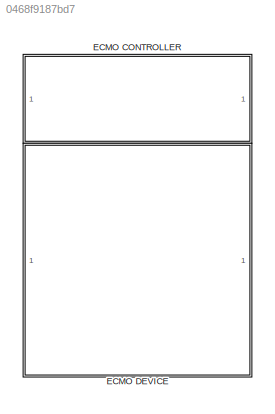
MODEL slx_0468f9187bd7
KIND model
CONFIG AbsTol = auto
CONFIG EnableMultiTasking = off
CONFIG FixedStep = auto
CONFIG MaxStep = auto
CONFIG MinStep = auto
CONFIG RelTol = 1e-3
CONFIG SampleTimeConstraint = Unconstrained
CONFIG Solver = VariableStepAuto
CONFIG SolverName = VariableStepAuto
CONFIG StartTime = 0.0
CONFIG StopTime = 10.0
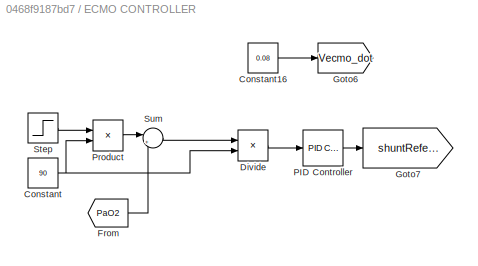
BLOCK [SubSystem] ECMO CONTROLLER
  Ports = []
  RequestExecContextInheritance = off
BLOCK [Constant] ECMO CONTROLLER/Constant
  Value = 90
BLOCK [Constant] ECMO CONTROLLER/Constant16
  Value = 0.08
BLOCK [Product] ECMO CONTROLLER/Divide
  InputSameDT = off
  Inputs = */
  OutDataTypeStr = Inherit: Inherit via internal rule
  Ports = [2, 1]
  RndMeth = Floor
  SaturateOnIntegerOverflow = off
BLOCK [From] ECMO CONTROLLER/From
  GotoTag = PaO2
  TagVisibility = global
BLOCK [Goto] ECMO CONTROLLER/Goto6
  GotoTag = Vecmo_dot
  TagVisibility = global
BLOCK [Goto] ECMO CONTROLLER/Goto7
  GotoTag = shuntReference
  TagVisibility = global
BLOCK [Reference] ECMO CONTROLLER/PID Controller  REF=simulink/Continuous/PID Controller
  Ports = [1, 1]
  SourceBlock = simulink/Continuous/PID Controller
  SourceProductBaseCode = SL
  SourceProductName = Simulink
  SourceType = PID 1dof
BLOCK [Product] ECMO CONTROLLER/Product
  InputSameDT = off
  OutDataTypeStr = Inherit: Inherit via internal rule
  Ports = [2, 1]
  RndMeth = Floor
  SaturateOnIntegerOverflow = off
BLOCK [Step] ECMO CONTROLLER/Step
  SampleTime = 0
  Time = 0
BLOCK [Sum] ECMO CONTROLLER/Sum
  IconShape = round
  InputSameDT = off
  Inputs = |+-
  OutDataTypeStr = Inherit: Inherit via internal rule
  Ports = [2, 1]
  SaturateOnIntegerOverflow = off
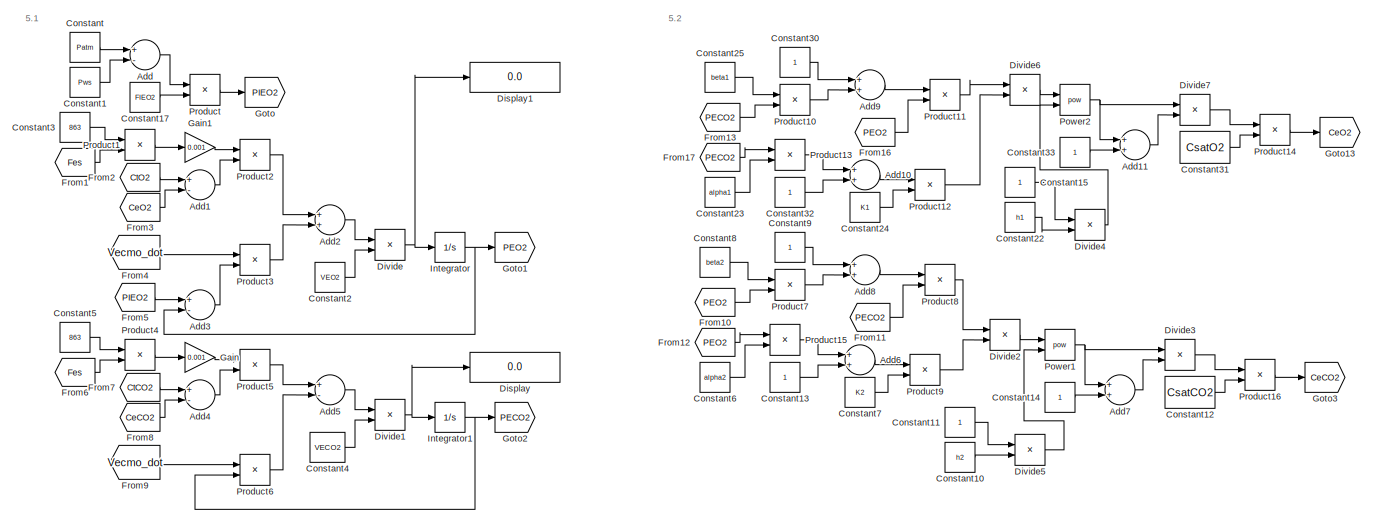
[diagram: ECMO DEVICE - part 1/2, full width, top band]
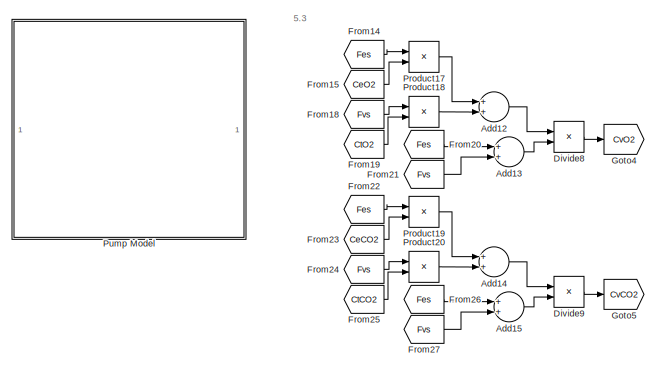
[diagram: ECMO DEVICE - part 2/2, bottom left region]
BLOCK [SubSystem] ECMO DEVICE
  Ports = []
  RequestExecContextInheritance = off
BLOCK [Sum] ECMO DEVICE/Add
  InputSameDT = off
  Inputs = +-
  OutDataTypeStr = Inherit: Inherit via internal rule
  Ports = [2, 1]
  SaturateOnIntegerOverflow = off
BLOCK [Sum] ECMO DEVICE/Add1
  InputSameDT = off
  Inputs = +-
  OutDataTypeStr = Inherit: Inherit via internal rule
  Ports = [2, 1]
  SaturateOnIntegerOverflow = off
BLOCK [Sum] ECMO DEVICE/Add10
  InputSameDT = off
  OutDataTypeStr = Inherit: Inherit via internal rule
  Ports = [2, 1]
  SaturateOnIntegerOverflow = off
BLOCK [Sum] ECMO DEVICE/Add11
  InputSameDT = off
  OutDataTypeStr = Inherit: Inherit via internal rule
  Ports = [2, 1]
  SaturateOnIntegerOverflow = off
BLOCK [Sum] ECMO DEVICE/Add12
  InputSameDT = off
  OutDataTypeStr = Inherit: Inherit via internal rule
  Ports = [2, 1]
  SaturateOnIntegerOverflow = off
BLOCK [Sum] ECMO DEVICE/Add13
  InputSameDT = off
  OutDataTypeStr = Inherit: Inherit via internal rule
  Ports = [2, 1]
  SaturateOnIntegerOverflow = off
BLOCK [Sum] ECMO DEVICE/Add14
  InputSameDT = off
  OutDataTypeStr = Inherit: Inherit via internal rule
  Ports = [2, 1]
  SaturateOnIntegerOverflow = off
BLOCK [Sum] ECMO DEVICE/Add15
  InputSameDT = off
  OutDataTypeStr = Inherit: Inherit via internal rule
  Ports = [2, 1]
  SaturateOnIntegerOverflow = off
BLOCK [Sum] ECMO DEVICE/Add2
  InputSameDT = off
  OutDataTypeStr = Inherit: Inherit via internal rule
  Ports = [2, 1]
  SaturateOnIntegerOverflow = off
BLOCK [Sum] ECMO DEVICE/Add3
  InputSameDT = off
  Inputs = +-
  OutDataTypeStr = Inherit: Inherit via internal rule
  Ports = [2, 1]
  SaturateOnIntegerOverflow = off
BLOCK [Sum] ECMO DEVICE/Add4
  InputSameDT = off
  Inputs = +-
  OutDataTypeStr = Inherit: Inherit via internal rule
  Ports = [2, 1]
  SaturateOnIntegerOverflow = off
BLOCK [Sum] ECMO DEVICE/Add5
  InputSameDT = off
  Inputs = +-
  OutDataTypeStr = Inherit: Inherit via internal rule
  Ports = [2, 1]
  SaturateOnIntegerOverflow = off
BLOCK [Sum] ECMO DEVICE/Add6
  InputSameDT = off
  OutDataTypeStr = Inherit: Inherit via internal rule
  Ports = [2, 1]
  SaturateOnIntegerOverflow = off
BLOCK [Sum] ECMO DEVICE/Add7
  InputSameDT = off
  OutDataTypeStr = Inherit: Inherit via internal rule
  Ports = [2, 1]
  SaturateOnIntegerOverflow = off
BLOCK [Sum] ECMO DEVICE/Add8
  InputSameDT = off
  OutDataTypeStr = Inherit: Inherit via internal rule
  Ports = [2, 1]
  SaturateOnIntegerOverflow = off
BLOCK [Sum] ECMO DEVICE/Add9
  InputSameDT = off
  OutDataTypeStr = Inherit: Inherit via internal rule
  Ports = [2, 1]
  SaturateOnIntegerOverflow = off
BLOCK [Constant] ECMO DEVICE/Constant
  Value = Patm
BLOCK [Constant] ECMO DEVICE/Constant1
  Value = Pws
BLOCK [Constant] ECMO DEVICE/Constant10
  SampleTime = Tsamp
  Value = h2
BLOCK [Constant] ECMO DEVICE/Constant11
  SampleTime = Tsamp
BLOCK [Constant] ECMO DEVICE/Constant12
  SampleTime = Tsamp
  Value = CsatCO2
BLOCK [Constant] ECMO DEVICE/Constant13
  SampleTime = Tsamp
BLOCK [Constant] ECMO DEVICE/Constant14
  SampleTime = Tsamp
BLOCK [Constant] ECMO DEVICE/Constant15
  SampleTime = Tsamp
BLOCK [Constant] ECMO DEVICE/Constant17
  Value = FIEO2
BLOCK [Constant] ECMO DEVICE/Constant2
  Value = VEO2
BLOCK [Constant] ECMO DEVICE/Constant22
  SampleTime = Tsamp
  Value = h1
BLOCK [Constant] ECMO DEVICE/Constant23
  SampleTime = Tsamp
  Value = alpha1
BLOCK [Constant] ECMO DEVICE/Constant24
  SampleTime = Tsamp
  Value = K1
BLOCK [Constant] ECMO DEVICE/Constant25
  SampleTime = Tsamp
  Value = beta1
BLOCK [Constant] ECMO DEVICE/Constant3
  Value = 863
BLOCK [Constant] ECMO DEVICE/Constant30
  SampleTime = Tsamp
BLOCK [Constant] ECMO DEVICE/Constant31
  SampleTime = Tsamp
  Value = CsatO2
BLOCK [Constant] ECMO DEVICE/Constant32
  SampleTime = Tsamp
BLOCK [Constant] ECMO DEVICE/Constant33
  SampleTime = Tsamp
BLOCK [Constant] ECMO DEVICE/Constant4
  Value = VECO2
BLOCK [Constant] ECMO DEVICE/Constant5
  Value = 863
BLOCK [Constant] ECMO DEVICE/Constant6
  SampleTime = Tsamp
  Value = alpha2
BLOCK [Constant] ECMO DEVICE/Constant7
  SampleTime = Tsamp
  Value = K2
BLOCK [Constant] ECMO DEVICE/Constant8
  SampleTime = Tsamp
  Value = beta2
BLOCK [Constant] ECMO DEVICE/Constant9
  SampleTime = Tsamp
BLOCK [Display] ECMO DEVICE/Display
  Decimation = 1
  Ports = [1]
BLOCK [Display] ECMO DEVICE/Display1
  Decimation = 1
  Ports = [1]
BLOCK [Product] ECMO DEVICE/Divide
  InputSameDT = off
  Inputs = */
  OutDataTypeStr = Inherit: Inherit via internal rule
  Ports = [2, 1]
  RndMeth = Floor
  SaturateOnIntegerOverflow = off
BLOCK [Product] ECMO DEVICE/Divide1
  InputSameDT = off
  Inputs = */
  OutDataTypeStr = Inherit: Inherit via internal rule
  Ports = [2, 1]
  RndMeth = Floor
  SaturateOnIntegerOverflow = off
BLOCK [Product] ECMO DEVICE/Divide2
  InputSameDT = off
  Inputs = */
  OutDataTypeStr = Inherit: Inherit via internal rule
  Ports = [2, 1]
  RndMeth = Floor
  SaturateOnIntegerOverflow = off
BLOCK [Product] ECMO DEVICE/Divide3
  InputSameDT = off
  Inputs = */
  OutDataTypeStr = Inherit: Inherit via internal rule
  Ports = [2, 1]
  RndMeth = Floor
  SaturateOnIntegerOverflow = off
BLOCK [Product] ECMO DEVICE/Divide4
  InputSameDT = off
  Inputs = */
  OutDataTypeStr = Inherit: Inherit via internal rule
  Ports = [2, 1]
  RndMeth = Floor
  SaturateOnIntegerOverflow = off
BLOCK [Product] ECMO DEVICE/Divide5
  InputSameDT = off
  Inputs = */
  OutDataTypeStr = Inherit: Inherit via internal rule
  Ports = [2, 1]
  RndMeth = Floor
  SaturateOnIntegerOverflow = off
BLOCK [Product] ECMO DEVICE/Divide6
  InputSameDT = off
  Inputs = */
  OutDataTypeStr = Inherit: Inherit via internal rule
  Ports = [2, 1]
  RndMeth = Floor
  SaturateOnIntegerOverflow = off
BLOCK [Product] ECMO DEVICE/Divide7
  InputSameDT = off
  Inputs = */
  OutDataTypeStr = Inherit: Inherit via internal rule
  Ports = [2, 1]
  RndMeth = Floor
  SaturateOnIntegerOverflow = off
BLOCK [Product] ECMO DEVICE/Divide8
  InputSameDT = off
  Inputs = */
  OutDataTypeStr = Inherit: Inherit via internal rule
  Ports = [2, 1]
  RndMeth = Floor
  SaturateOnIntegerOverflow = off
BLOCK [Product] ECMO DEVICE/Divide9
  InputSameDT = off
  Inputs = */
  OutDataTypeStr = Inherit: Inherit via internal rule
  Ports = [2, 1]
  RndMeth = Floor
  SaturateOnIntegerOverflow = off
BLOCK [From] ECMO DEVICE/From1
  GotoTag = Fes
  TagVisibility = global
BLOCK [From] ECMO DEVICE/From10
  GotoTag = PEO2
  TagVisibility = global
BLOCK [From] ECMO DEVICE/From11
  GotoTag = PECO2
  TagVisibility = global
BLOCK [From] ECMO DEVICE/From12
  GotoTag = PEO2
  TagVisibility = global
BLOCK [From] ECMO DEVICE/From13
  GotoTag = PECO2
  TagVisibility = global
BLOCK [From] ECMO DEVICE/From14
  GotoTag = Fes
  TagVisibility = global
BLOCK [From] ECMO DEVICE/From15
  GotoTag = CeO2
  TagVisibility = global
BLOCK [From] ECMO DEVICE/From16
  GotoTag = PEO2
  TagVisibility = global
BLOCK [From] ECMO DEVICE/From17
  GotoTag = PECO2
  TagVisibility = global
BLOCK [From] ECMO DEVICE/From18
  GotoTag = Fvs
  TagVisibility = global
BLOCK [From] ECMO DEVICE/From19
  GotoTag = CtO2
  TagVisibility = global
BLOCK [From] ECMO DEVICE/From2
  GotoTag = CtO2
  TagVisibility = global
BLOCK [From] ECMO DEVICE/From20
  GotoTag = Fes
  TagVisibility = global
BLOCK [From] ECMO DEVICE/From21
  GotoTag = Fvs
  TagVisibility = global
BLOCK [From] ECMO DEVICE/From22
  GotoTag = Fes
  TagVisibility = global
BLOCK [From] ECMO DEVICE/From23
  GotoTag = CeCO2
  TagVisibility = global
BLOCK [From] ECMO DEVICE/From24
  GotoTag = Fvs
  TagVisibility = global
BLOCK [From] ECMO DEVICE/From25
  GotoTag = CtCO2
  TagVisibility = global
BLOCK [From] ECMO DEVICE/From26
  GotoTag = Fes
  TagVisibility = global
BLOCK [From] ECMO DEVICE/From27
  GotoTag = Fvs
  TagVisibility = global
BLOCK [From] ECMO DEVICE/From3
  GotoTag = CeO2
  TagVisibility = global
BLOCK [From] ECMO DEVICE/From4
  GotoTag = Vecmo_dot
  TagVisibility = global
BLOCK [From] ECMO DEVICE/From5
  GotoTag = PIEO2
  TagVisibility = global
BLOCK [From] ECMO DEVICE/From6
  GotoTag = Fes
  TagVisibility = global
BLOCK [From] ECMO DEVICE/From7
  GotoTag = CtCO2
  TagVisibility = global
BLOCK [From] ECMO DEVICE/From8
  GotoTag = CeCO2
  TagVisibility = global
BLOCK [From] ECMO DEVICE/From9
  GotoTag = Vecmo_dot
  TagVisibility = global
BLOCK [Gain] ECMO DEVICE/Gain
  Gain = 0.001
  OutDataTypeStr = Inherit: Inherit via internal rule
  ParamDataTypeStr = Inherit: Inherit via internal rule
  SaturateOnIntegerOverflow = off
BLOCK [Gain] ECMO DEVICE/Gain1
  Gain = 0.001
  OutDataTypeStr = Inherit: Inherit via internal rule
  ParamDataTypeStr = Inherit: Inherit via internal rule
  SaturateOnIntegerOverflow = off
BLOCK [Goto] ECMO DEVICE/Goto
  GotoTag = PIEO2
  TagVisibility = global
BLOCK [Goto] ECMO DEVICE/Goto1
  GotoTag = PEO2
  TagVisibility = global
BLOCK [Goto] ECMO DEVICE/Goto13
  GotoTag = CeO2
  TagVisibility = global
BLOCK [Goto] ECMO DEVICE/Goto2
  GotoTag = PECO2
  TagVisibility = global
BLOCK [Goto] ECMO DEVICE/Goto3
  GotoTag = CeCO2
  TagVisibility = global
BLOCK [Goto] ECMO DEVICE/Goto4
  GotoTag = CvO2
  TagVisibility = global
BLOCK [Goto] ECMO DEVICE/Goto5
  GotoTag = CvCO2
  TagVisibility = global
BLOCK [Integrator] ECMO DEVICE/Integrator
  InitialCondition = PEO2_IC
  Ports = [1, 1]
BLOCK [Integrator] ECMO DEVICE/Integrator1
  InitialCondition = PECO2_IC
  Ports = [1, 1]
BLOCK [Math] ECMO DEVICE/Power1
  Operator = pow
  Ports = [2, 1]
  SignedPower = off
BLOCK [Math] ECMO DEVICE/Power2
  Operator = pow
  Ports = [2, 1]
  SignedPower = off
BLOCK [Product] ECMO DEVICE/Product
  InputSameDT = off
  OutDataTypeStr = Inherit: Inherit via internal rule
  Ports = [2, 1]
  RndMeth = Floor
  SaturateOnIntegerOverflow = off
BLOCK [Product] ECMO DEVICE/Product1
  InputSameDT = off
  OutDataTypeStr = Inherit: Inherit via internal rule
  Ports = [2, 1]
  RndMeth = Floor
  SaturateOnIntegerOverflow = off
BLOCK [Product] ECMO DEVICE/Product10
  InputSameDT = off
  OutDataTypeStr = Inherit: Inherit via internal rule
  Ports = [2, 1]
  RndMeth = Floor
  SaturateOnIntegerOverflow = off
BLOCK [Product] ECMO DEVICE/Product11
  InputSameDT = off
  OutDataTypeStr = Inherit: Inherit via internal rule
  Ports = [2, 1]
  RndMeth = Floor
  SaturateOnIntegerOverflow = off
BLOCK [Product] ECMO DEVICE/Product12
  InputSameDT = off
  OutDataTypeStr = Inherit: Inherit via internal rule
  Ports = [2, 1]
  RndMeth = Floor
  SaturateOnIntegerOverflow = off
BLOCK [Product] ECMO DEVICE/Product13
  InputSameDT = off
  OutDataTypeStr = Inherit: Inherit via internal rule
  Ports = [2, 1]
  RndMeth = Floor
  SaturateOnIntegerOverflow = off
BLOCK [Product] ECMO DEVICE/Product14
  InputSameDT = off
  OutDataTypeStr = Inherit: Inherit via internal rule
  Ports = [2, 1]
  RndMeth = Floor
  SaturateOnIntegerOverflow = off
BLOCK [Product] ECMO DEVICE/Product15
  InputSameDT = off
  OutDataTypeStr = Inherit: Inherit via internal rule
  Ports = [2, 1]
  RndMeth = Floor
  SaturateOnIntegerOverflow = off
BLOCK [Product] ECMO DEVICE/Product16
  InputSameDT = off
  OutDataTypeStr = Inherit: Inherit via internal rule
  Ports = [2, 1]
  RndMeth = Floor
  SaturateOnIntegerOverflow = off
BLOCK [Product] ECMO DEVICE/Product17
  InputSameDT = off
  OutDataTypeStr = Inherit: Inherit via internal rule
  Ports = [2, 1]
  RndMeth = Floor
  SaturateOnIntegerOverflow = off
BLOCK [Product] ECMO DEVICE/Product18
  InputSameDT = off
  OutDataTypeStr = Inherit: Inherit via internal rule
  Ports = [2, 1]
  RndMeth = Floor
  SaturateOnIntegerOverflow = off
BLOCK [Product] ECMO DEVICE/Product19
  InputSameDT = off
  OutDataTypeStr = Inherit: Inherit via internal rule
  Ports = [2, 1]
  RndMeth = Floor
  SaturateOnIntegerOverflow = off
BLOCK [Product] ECMO DEVICE/Product2
  InputSameDT = off
  OutDataTypeStr = Inherit: Inherit via internal rule
  Ports = [2, 1]
  RndMeth = Floor
  SaturateOnIntegerOverflow = off
BLOCK [Product] ECMO DEVICE/Product20
  InputSameDT = off
  OutDataTypeStr = Inherit: Inherit via internal rule
  Ports = [2, 1]
  RndMeth = Floor
  SaturateOnIntegerOverflow = off
BLOCK [Product] ECMO DEVICE/Product3
  InputSameDT = off
  OutDataTypeStr = Inherit: Inherit via internal rule
  Ports = [2, 1]
  RndMeth = Floor
  SaturateOnIntegerOverflow = off
BLOCK [Product] ECMO DEVICE/Product4
  InputSameDT = off
  OutDataTypeStr = Inherit: Inherit via internal rule
  Ports = [2, 1]
  RndMeth = Floor
  SaturateOnIntegerOverflow = off
BLOCK [Product] ECMO DEVICE/Product5
  InputSameDT = off
  OutDataTypeStr = Inherit: Inherit via internal rule
  Ports = [2, 1]
  RndMeth = Floor
  SaturateOnIntegerOverflow = off
BLOCK [Product] ECMO DEVICE/Product6
  InputSameDT = off
  OutDataTypeStr = Inherit: Inherit via internal rule
  Ports = [2, 1]
  RndMeth = Floor
  SaturateOnIntegerOverflow = off
BLOCK [Product] ECMO DEVICE/Product7
  InputSameDT = off
  OutDataTypeStr = Inherit: Inherit via internal rule
  Ports = [2, 1]
  RndMeth = Floor
  SaturateOnIntegerOverflow = off
BLOCK [Product] ECMO DEVICE/Product8
  InputSameDT = off
  OutDataTypeStr = Inherit: Inherit via internal rule
  Ports = [2, 1]
  RndMeth = Floor
  SaturateOnIntegerOverflow = off
BLOCK [Product] ECMO DEVICE/Product9
  InputSameDT = off
  OutDataTypeStr = Inherit: Inherit via internal rule
  Ports = [2, 1]
  RndMeth = Floor
  SaturateOnIntegerOverflow = off
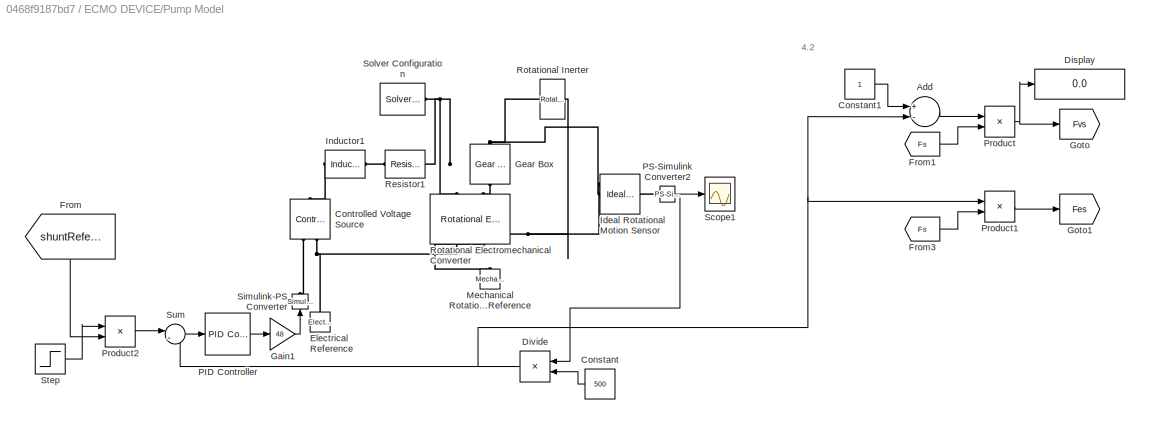
BLOCK [SubSystem] ECMO DEVICE/Pump Model 
  Ports = []
  RequestExecContextInheritance = off
BLOCK [Sum] ECMO DEVICE/Pump Model /Add
  InputSameDT = off
  Inputs = +-
  OutDataTypeStr = Inherit: Inherit via internal rule
  Ports = [2, 1]
  SaturateOnIntegerOverflow = off
BLOCK [Constant] ECMO DEVICE/Pump Model /Constant
  Value = 500
BLOCK [Constant] ECMO DEVICE/Pump Model /Constant1
BLOCK [Reference] ECMO DEVICE/Pump Model /Controlled Voltage Source  REF=fl_lib/Electrical/Electrical Sources/Controlled Voltage
Source
  Ports = [0, 0, 0, 0, 0, 1, 2]
  SourceBlock = fl_lib/Electrical/Electrical Sources/Controlled Voltage\nSource
  SourceProductBaseCode = SS
  SourceProductName = Simscape
  SourceType = Controlled Voltage\nSource
BLOCK [Display] ECMO DEVICE/Pump Model /Display
  Decimation = 1
  Ports = [1]
BLOCK [Product] ECMO DEVICE/Pump Model /Divide
  InputSameDT = off
  Inputs = */
  OutDataTypeStr = Inherit: Inherit via internal rule
  Ports = [2, 1]
  RndMeth = Floor
  SaturateOnIntegerOverflow = off
BLOCK [Reference] ECMO DEVICE/Pump Model /Electrical Reference  REF=fl_lib/Electrical/Electrical Elements/Electrical Reference
  Ports = [0, 0, 0, 0, 0, 1]
  SourceBlock = fl_lib/Electrical/Electrical Elements/Electrical Reference
  SourceProductBaseCode = SS
  SourceProductName = Simscape
  SourceType = Electrical Reference
BLOCK [From] ECMO DEVICE/Pump Model /From
  GotoTag = shuntReference
  TagVisibility = global
BLOCK [From] ECMO DEVICE/Pump Model /From1
  GotoTag = Fs
  TagVisibility = global
BLOCK [From] ECMO DEVICE/Pump Model /From3
  GotoTag = Fs
  TagVisibility = global
BLOCK [Gain] ECMO DEVICE/Pump Model /Gain1
  Gain = 48
  OutDataTypeStr = Inherit: Inherit via internal rule
  ParamDataTypeStr = Inherit: Inherit via internal rule
  SaturateOnIntegerOverflow = off
BLOCK [Reference] ECMO DEVICE/Pump Model /Gear Box  REF=fl_lib/Mechanical/Mechanisms/Gear Box
  Ports = [0, 0, 0, 0, 0, 1, 1]
  SourceBlock = fl_lib/Mechanical/Mechanisms/Gear Box
  SourceProductBaseCode = SS
  SourceProductName = Simscape
  SourceType = Gear Box
BLOCK [Goto] ECMO DEVICE/Pump Model /Goto
  GotoTag = Fvs
  TagVisibility = global
BLOCK [Goto] ECMO DEVICE/Pump Model /Goto1
  GotoTag = Fes
  TagVisibility = global
BLOCK [Reference] ECMO DEVICE/Pump Model /Ideal Rotational Motion Sensor  REF=fl_lib/Mechanical/Mechanical Sensors/Ideal Rotational
Motion Sensor
  Ports = [0, 0, 0, 0, 0, 1, 3]
  SourceBlock = fl_lib/Mechanical/Mechanical Sensors/Ideal Rotational\nMotion Sensor
  SourceProductBaseCode = SS
  SourceProductName = Simscape
  SourceType = Ideal Rotational\nMotion Sensor
BLOCK [Reference] ECMO DEVICE/Pump Model /Inductor1  REF=fl_lib/Electrical/Electrical Elements/Inductor
  Ports = [0, 0, 0, 0, 0, 1, 1]
  SourceBlock = fl_lib/Electrical/Electrical Elements/Inductor
  SourceProductBaseCode = SS
  SourceProductName = Simscape
  SourceType = Inductor
BLOCK [Reference] ECMO DEVICE/Pump Model /Mechanical Rotational Reference  REF=fl_lib/Mechanical/Rotational Elements/Mechanical
Rotational Reference
  Ports = [0, 0, 0, 0, 0, 1]
  SourceBlock = fl_lib/Mechanical/Rotational Elements/Mechanical\nRotational Reference
  SourceProductBaseCode = SS
  SourceProductName = Simscape
  SourceType = Mechanical\nRotational Reference
BLOCK [Reference] ECMO DEVICE/Pump Model /PID Controller  REF=simulink/Continuous/PID Controller
  Ports = [1, 1]
  SourceBlock = simulink/Continuous/PID Controller
  SourceProductBaseCode = SL
  SourceProductName = Simulink
  SourceType = PID 1dof
BLOCK [Reference] ECMO DEVICE/Pump Model /PS-Simulink Converter2  REF=nesl_utility/PS-Simulink
Converter
  Ports = [0, 1, 0, 0, 0, 1]
  SourceBlock = nesl_utility/PS-Simulink\nConverter
  SourceProductBaseCode = SS
  SourceProductName = Simscape
  SourceType = PS-Simulink\nConverter
BLOCK [Product] ECMO DEVICE/Pump Model /Product
  InputSameDT = off
  OutDataTypeStr = Inherit: Inherit via internal rule
  Ports = [2, 1]
  RndMeth = Floor
  SaturateOnIntegerOverflow = off
BLOCK [Product] ECMO DEVICE/Pump Model /Product1
  InputSameDT = off
  OutDataTypeStr = Inherit: Inherit via internal rule
  Ports = [2, 1]
  RndMeth = Floor
  SaturateOnIntegerOverflow = off
BLOCK [Product] ECMO DEVICE/Pump Model /Product2
  InputSameDT = off
  OutDataTypeStr = Inherit: Inherit via internal rule
  Ports = [2, 1]
  RndMeth = Floor
  SaturateOnIntegerOverflow = off
BLOCK [Reference] ECMO DEVICE/Pump Model /Resistor1  REF=fl_lib/Electrical/Electrical Elements/Resistor
  Ports = [0, 0, 0, 0, 0, 1, 1]
  SourceBlock = fl_lib/Electrical/Electrical Elements/Resistor
  SourceProductBaseCode = SS
  SourceProductName = Simscape
  SourceType = Resistor
BLOCK [Reference] ECMO DEVICE/Pump Model /Rotational Electromechanical Converter  REF=fl_lib/Electrical/Electrical Elements/Rotational
Electromechanical
Converter
  Ports = [0, 0, 0, 0, 0, 2, 2]
  SourceBlock = fl_lib/Electrical/Electrical Elements/Rotational\nElectromechanical\nConverter
  SourceProductBaseCode = SS
  SourceProductName = Simscape
  SourceType = Rotational\nElectromechanical\nConverter
BLOCK [Reference] ECMO DEVICE/Pump Model /Rotational Inerter  REF=fl_lib/Mechanical/Rotational Elements/Rotational Inerter
  Ports = [0, 0, 0, 0, 0, 1, 1]
  SourceBlock = fl_lib/Mechanical/Rotational Elements/Rotational Inerter
  SourceProductBaseCode = SS
  SourceProductName = Simscape
  SourceType = Rotational Inerter
BLOCK [Scope] ECMO DEVICE/Pump Model /Scope1
  Floating = off
  NumInputPorts = 1
  Ports = [1]
  ScopeSpecificationString = Simulink.scopes.TimeScopeBlockCfg('CurrentConfiguration', extmgr.ConfigurationSet(extmgr.Configuration('Core','General UI',true,'FigureColor',[1 1 1]),extmgr.Configuration('Core','Source UI',true),extmgr.Configuration('Sources','WiredSimulink',true,'DataLoggingVariableName','ScopeData4'),extmgr.Configuration('Visuals','Time Domain',true,'SerializedDisplays',{struct('MinYLimReal','-46.52873','MaxYL...<+1697ch>
BLOCK [Reference] ECMO DEVICE/Pump Model /Simulink-PS Converter  REF=nesl_utility/Simulink-PS
Converter
  Ports = [1, 0, 0, 0, 0, 0, 1]
  SourceBlock = nesl_utility/Simulink-PS\nConverter
  SourceProductBaseCode = SS
  SourceProductName = Simscape
  SourceType = Simulink-PS\nConverter
BLOCK [Reference] ECMO DEVICE/Pump Model /Solver Configuration  REF=nesl_utility/Solver
Configuration
  Ports = [0, 0, 0, 0, 0, 0, 1]
  SourceBlock = nesl_utility/Solver\nConfiguration
  SourceProductBaseCode = SS
  SourceProductName = Simscape
  SourceType = Solver\nConfiguration
BLOCK [Step] ECMO DEVICE/Pump Model /Step
  SampleTime = 0
  Time = 0
BLOCK [Sum] ECMO DEVICE/Pump Model /Sum
  IconShape = round
  InputSameDT = off
  Inputs = |+-
  OutDataTypeStr = Inherit: Inherit via internal rule
  Ports = [2, 1]
  SaturateOnIntegerOverflow = off
ANNOTATION ECMO DEVICE: 5.1
ANNOTATION ECMO DEVICE: 5.2
ANNOTATION ECMO DEVICE: 5.3
ANNOTATION ECMO DEVICE/Pump Model : 4.2
LINE ECMO CONTROLLER/Constant16:1 -> ECMO CONTROLLER/Goto6:1
NET ECMO CONTROLLER/Constant:1 -> ECMO CONTROLLER/Divide:2, ECMO CONTROLLER/Product:2
LINE ECMO CONTROLLER/Divide:1 -> ECMO CONTROLLER/PID Controller:1
LINE ECMO CONTROLLER/From:1 -> ECMO CONTROLLER/Sum:2
LINE ECMO CONTROLLER/PID Controller:1 -> ECMO CONTROLLER/Goto7:1
LINE ECMO CONTROLLER/Product:1 -> ECMO CONTROLLER/Sum:1
LINE ECMO CONTROLLER/Step:1 -> ECMO CONTROLLER/Product:1
LINE ECMO CONTROLLER/Sum:1 -> ECMO CONTROLLER/Divide:1
LINE ECMO DEVICE/Add10:1 -> ECMO DEVICE/Product12:1
LINE ECMO DEVICE/Add11:1 -> ECMO DEVICE/Divide7:2
LINE ECMO DEVICE/Add12:1 -> ECMO DEVICE/Divide8:1
LINE ECMO DEVICE/Add13:1 -> ECMO DEVICE/Divide8:2
LINE ECMO DEVICE/Add14:1 -> ECMO DEVICE/Divide9:1
LINE ECMO DEVICE/Add15:1 -> ECMO DEVICE/Divide9:2
LINE ECMO DEVICE/Add1:1 -> ECMO DEVICE/Product2:2
LINE ECMO DEVICE/Add2:1 -> ECMO DEVICE/Divide:1
LINE ECMO DEVICE/Add3:1 -> ECMO DEVICE/Product3:2
LINE ECMO DEVICE/Add4:1 -> ECMO DEVICE/Product5:2
LINE ECMO DEVICE/Add5:1 -> ECMO DEVICE/Divide1:1
LINE ECMO DEVICE/Add6:1 -> ECMO DEVICE/Product9:1
LINE ECMO DEVICE/Add7:1 -> ECMO DEVICE/Divide3:2
LINE ECMO DEVICE/Add8:1 -> ECMO DEVICE/Product8:1
LINE ECMO DEVICE/Add9:1 -> ECMO DEVICE/Product11:1
LINE ECMO DEVICE/Add:1 -> ECMO DEVICE/Product:1
LINE ECMO DEVICE/Constant10:1 -> ECMO DEVICE/Divide5:2
LINE ECMO DEVICE/Constant11:1 -> ECMO DEVICE/Divide5:1
LINE ECMO DEVICE/Constant12:1 -> ECMO DEVICE/Product16:2
LINE ECMO DEVICE/Constant13:1 -> ECMO DEVICE/Add6:2
LINE ECMO DEVICE/Constant14:1 -> ECMO DEVICE/Add7:2
LINE ECMO DEVICE/Constant15:1 -> ECMO DEVICE/Divide4:1
LINE ECMO DEVICE/Constant17:1 -> ECMO DEVICE/Product:2
LINE ECMO DEVICE/Constant1:1 -> ECMO DEVICE/Add:2
LINE ECMO DEVICE/Constant22:1 -> ECMO DEVICE/Divide4:2
LINE ECMO DEVICE/Constant23:1 -> ECMO DEVICE/Product13:2
LINE ECMO DEVICE/Constant24:1 -> ECMO DEVICE/Product12:2
LINE ECMO DEVICE/Constant25:1 -> ECMO DEVICE/Product10:1
LINE ECMO DEVICE/Constant2:1 -> ECMO DEVICE/Divide:2
LINE ECMO DEVICE/Constant30:1 -> ECMO DEVICE/Add9:1
LINE ECMO DEVICE/Constant31:1 -> ECMO DEVICE/Product14:2
LINE ECMO DEVICE/Constant32:1 -> ECMO DEVICE/Add10:2
LINE ECMO DEVICE/Constant33:1 -> ECMO DEVICE/Add11:2
LINE ECMO DEVICE/Constant3:1 -> ECMO DEVICE/Product1:1
LINE ECMO DEVICE/Constant4:1 -> ECMO DEVICE/Divide1:2
LINE ECMO DEVICE/Constant5:1 -> ECMO DEVICE/Product4:1
LINE ECMO DEVICE/Constant6:1 -> ECMO DEVICE/Product15:2
LINE ECMO DEVICE/Constant7:1 -> ECMO DEVICE/Product9:2
LINE ECMO DEVICE/Constant8:1 -> ECMO DEVICE/Product7:1
LINE ECMO DEVICE/Constant9:1 -> ECMO DEVICE/Add8:1
LINE ECMO DEVICE/Constant:1 -> ECMO DEVICE/Add:1
NET ECMO DEVICE/Divide1:1 -> ECMO DEVICE/Display:1, ECMO DEVICE/Integrator1:1
LINE ECMO DEVICE/Divide2:1 -> ECMO DEVICE/Power1:1
LINE ECMO DEVICE/Divide3:1 -> ECMO DEVICE/Product16:1
LINE ECMO DEVICE/Divide4:1 -> ECMO DEVICE/Power2:2
LINE ECMO DEVICE/Divide5:1 -> ECMO DEVICE/Power1:2
LINE ECMO DEVICE/Divide6:1 -> ECMO DEVICE/Power2:1
LINE ECMO DEVICE/Divide7:1 -> ECMO DEVICE/Product14:1
LINE ECMO DEVICE/Divide8:1 -> ECMO DEVICE/Goto4:1
LINE ECMO DEVICE/Divide9:1 -> ECMO DEVICE/Goto5:1
NET ECMO DEVICE/Divide:1 -> ECMO DEVICE/Display1:1, ECMO DEVICE/Integrator:1
LINE ECMO DEVICE/From10:1 -> ECMO DEVICE/Product7:2
LINE ECMO DEVICE/From11:1 -> ECMO DEVICE/Product8:2
LINE ECMO DEVICE/From12:1 -> ECMO DEVICE/Product15:1
LINE ECMO DEVICE/From13:1 -> ECMO DEVICE/Product10:2
LINE ECMO DEVICE/From14:1 -> ECMO DEVICE/Product17:1
LINE ECMO DEVICE/From15:1 -> ECMO DEVICE/Product17:2
LINE ECMO DEVICE/From16:1 -> ECMO DEVICE/Product11:2
LINE ECMO DEVICE/From17:1 -> ECMO DEVICE/Product13:1
LINE ECMO DEVICE/From18:1 -> ECMO DEVICE/Product18:1
LINE ECMO DEVICE/From19:1 -> ECMO DEVICE/Product18:2
LINE ECMO DEVICE/From1:1 -> ECMO DEVICE/Product1:2
LINE ECMO DEVICE/From20:1 -> ECMO DEVICE/Add13:1
LINE ECMO DEVICE/From21:1 -> ECMO DEVICE/Add13:2
LINE ECMO DEVICE/From22:1 -> ECMO DEVICE/Product19:1
LINE ECMO DEVICE/From23:1 -> ECMO DEVICE/Product19:2
LINE ECMO DEVICE/From24:1 -> ECMO DEVICE/Product20:1
LINE ECMO DEVICE/From25:1 -> ECMO DEVICE/Product20:2
LINE ECMO DEVICE/From26:1 -> ECMO DEVICE/Add15:1
LINE ECMO DEVICE/From27:1 -> ECMO DEVICE/Add15:2
LINE ECMO DEVICE/From2:1 -> ECMO DEVICE/Add1:1
LINE ECMO DEVICE/From3:1 -> ECMO DEVICE/Add1:2
LINE ECMO DEVICE/From4:1 -> ECMO DEVICE/Product3:1
LINE ECMO DEVICE/From5:1 -> ECMO DEVICE/Add3:1
LINE ECMO DEVICE/From6:1 -> ECMO DEVICE/Product4:2
LINE ECMO DEVICE/From7:1 -> ECMO DEVICE/Add4:1
LINE ECMO DEVICE/From8:1 -> ECMO DEVICE/Add4:2
LINE ECMO DEVICE/From9:1 -> ECMO DEVICE/Product6:1
LINE ECMO DEVICE/Gain1:1 -> ECMO DEVICE/Product2:1
LINE ECMO DEVICE/Gain:1 -> ECMO DEVICE/Product5:1
NET ECMO DEVICE/Integrator1:1 -> ECMO DEVICE/Goto2:1, ECMO DEVICE/Product6:2
NET ECMO DEVICE/Integrator:1 -> ECMO DEVICE/Add3:2, ECMO DEVICE/Goto1:1
NET ECMO DEVICE/Power1:1 -> ECMO DEVICE/Add7:1, ECMO DEVICE/Divide3:1
NET ECMO DEVICE/Power2:1 -> ECMO DEVICE/Add11:1, ECMO DEVICE/Divide7:1
LINE ECMO DEVICE/Product10:1 -> ECMO DEVICE/Add9:2
LINE ECMO DEVICE/Product11:1 -> ECMO DEVICE/Divide6:1
LINE ECMO DEVICE/Product12:1 -> ECMO DEVICE/Divide6:2
LINE ECMO DEVICE/Product13:1 -> ECMO DEVICE/Add10:1
LINE ECMO DEVICE/Product14:1 -> ECMO DEVICE/Goto13:1
LINE ECMO DEVICE/Product15:1 -> ECMO DEVICE/Add6:1
LINE ECMO DEVICE/Product16:1 -> ECMO DEVICE/Goto3:1
LINE ECMO DEVICE/Product17:1 -> ECMO DEVICE/Add12:1
LINE ECMO DEVICE/Product18:1 -> ECMO DEVICE/Add12:2
LINE ECMO DEVICE/Product19:1 -> ECMO DEVICE/Add14:1
LINE ECMO DEVICE/Product1:1 -> ECMO DEVICE/Gain1:1
LINE ECMO DEVICE/Product20:1 -> ECMO DEVICE/Add14:2
LINE ECMO DEVICE/Product2:1 -> ECMO DEVICE/Add2:1
LINE ECMO DEVICE/Product3:1 -> ECMO DEVICE/Add2:2
LINE ECMO DEVICE/Product4:1 -> ECMO DEVICE/Gain:1
LINE ECMO DEVICE/Product5:1 -> ECMO DEVICE/Add5:1
LINE ECMO DEVICE/Product6:1 -> ECMO DEVICE/Add5:2
LINE ECMO DEVICE/Product7:1 -> ECMO DEVICE/Add8:2
LINE ECMO DEVICE/Product8:1 -> ECMO DEVICE/Divide2:1
LINE ECMO DEVICE/Product9:1 -> ECMO DEVICE/Divide2:2
LINE ECMO DEVICE/Product:1 -> ECMO DEVICE/Goto:1
LINE ECMO DEVICE/Pump Model /Add:1 -> ECMO DEVICE/Pump Model /Product:1
LINE ECMO DEVICE/Pump Model /Constant1:1 -> ECMO DEVICE/Pump Model /Add:1
LINE ECMO DEVICE/Pump Model /Constant:1 -> ECMO DEVICE/Pump Model /Divide:2
NET ECMO DEVICE/Pump Model /Divide:1 -> ECMO DEVICE/Pump Model /Add:2, ECMO DEVICE/Pump Model /Product1:1, ECMO DEVICE/Pump Model /Sum:2
LINE ECMO DEVICE/Pump Model /From1:1 -> ECMO DEVICE/Pump Model /Product:2
LINE ECMO DEVICE/Pump Model /From3:1 -> ECMO DEVICE/Pump Model /Product1:2
LINE ECMO DEVICE/Pump Model /From:1 -> ECMO DEVICE/Pump Model /Product2:2
LINE ECMO DEVICE/Pump Model /Gain1:1 -> ECMO DEVICE/Pump Model /Simulink-PS Converter:1
LINE ECMO DEVICE/Pump Model /PID Controller:1 -> ECMO DEVICE/Pump Model /Gain1:1
NET ECMO DEVICE/Pump Model /PS-Simulink Converter2:1 -> ECMO DEVICE/Pump Model /Divide:1, ECMO DEVICE/Pump Model /Scope1:1
LINE ECMO DEVICE/Pump Model /Product1:1 -> ECMO DEVICE/Pump Model /Goto1:1
LINE ECMO DEVICE/Pump Model /Product2:1 -> ECMO DEVICE/Pump Model /Sum:1
NET ECMO DEVICE/Pump Model /Product:1 -> ECMO DEVICE/Pump Model /Display:1, ECMO DEVICE/Pump Model /Goto:1
LINE ECMO DEVICE/Pump Model /Step:1 -> ECMO DEVICE/Pump Model /Product2:1
LINE ECMO DEVICE/Pump Model /Sum:1 -> ECMO DEVICE/Pump Model /PID Controller:1
PLINE ECMO DEVICE/Pump Model /Controlled Voltage Source:LConn1 -- ECMO DEVICE/Pump Model /Inductor1:LConn1
PLINE ECMO DEVICE/Pump Model /Controlled Voltage Source:RConn1 -- ECMO DEVICE/Pump Model /Simulink-PS Converter:RConn1
PNET net1: ECMO DEVICE/Pump Model /Controlled Voltage Source:RConn2 -- ECMO DEVICE/Pump Model /Electrical Reference:LConn1 -- ECMO DEVICE/Pump Model /Rotational Electromechanical Converter:RConn1
PLINE ECMO DEVICE/Pump Model /Gear Box:LConn1 -- ECMO DEVICE/Pump Model /Rotational Electromechanical Converter:LConn2
PNET net2: ECMO DEVICE/Pump Model /Gear Box:RConn1 -- ECMO DEVICE/Pump Model /Ideal Rotational Motion Sensor:LConn1 -- ECMO DEVICE/Pump Model /Rotational Inerter:LConn1
PNET net3: ECMO DEVICE/Pump Model /Ideal Rotational Motion Sensor:RConn1 -- ECMO DEVICE/Pump Model /Mechanical Rotational Reference:LConn1 -- ECMO DEVICE/Pump Model /Rotational Electromechanical Converter:RConn2 -- ECMO DEVICE/Pump Model /Rotational Inerter:RConn1
PLINE ECMO DEVICE/Pump Model /Ideal Rotational Motion Sensor:RConn2 -- ECMO DEVICE/Pump Model /PS-Simulink Converter2:LConn1
PLINE ECMO DEVICE/Pump Model /Inductor1:RConn1 -- ECMO DEVICE/Pump Model /Resistor1:LConn1
PNET net4: ECMO DEVICE/Pump Model /Resistor1:RConn1 -- ECMO DEVICE/Pump Model /Rotational Electromechanical Converter:LConn1 -- ECMO DEVICE/Pump Model /Solver Configuration:RConn1
note: NET lines group one-source signal fan-out (src -> all destinations, sorted); 1:1 wires keep LINE; PNET lines group multi-terminal physical nets as a canonical sorted terminal list (undirected conserving connections); 2-terminal nets keep the pairwise PLINE form
